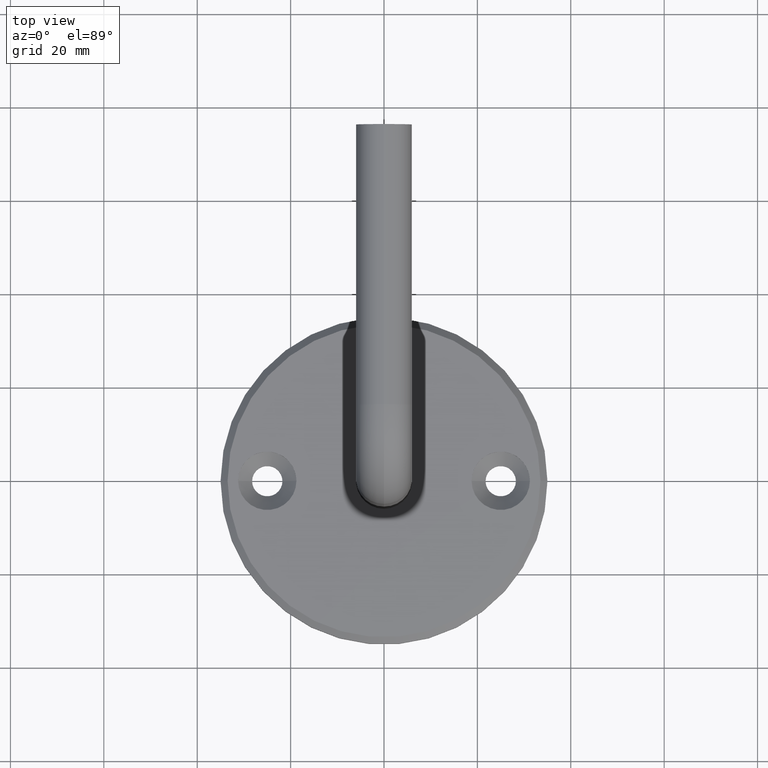
[diagram: clean part render]
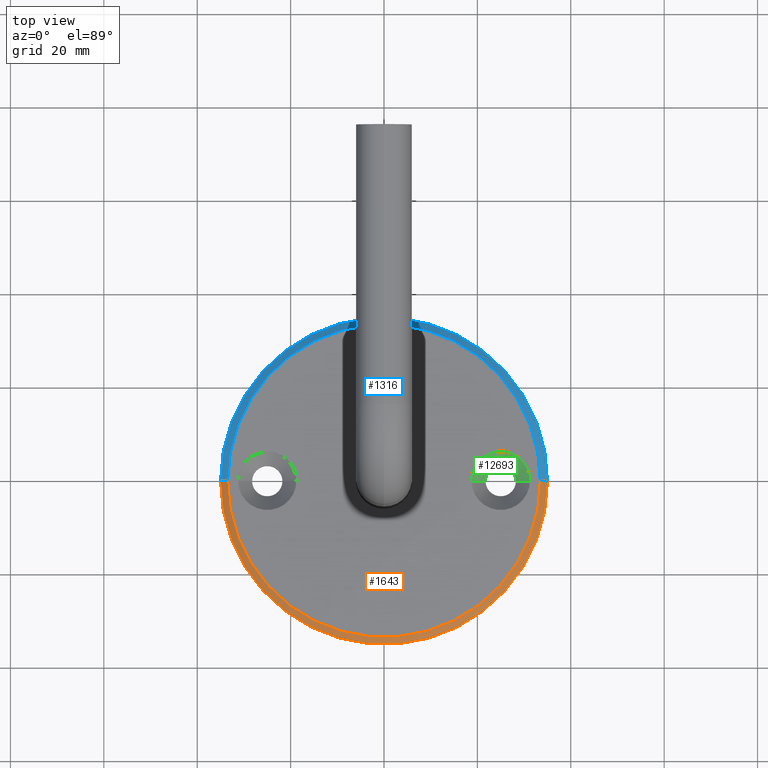
[diagram: same view with three faces highlighted in distinct colors, each labeled with its STEP entity id]
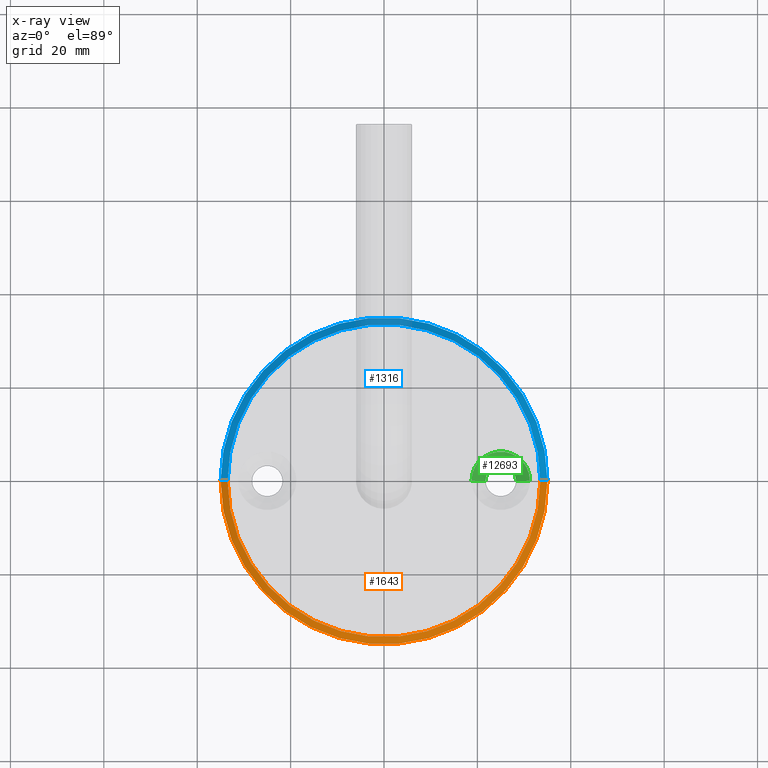
[diagram: x-ray of the same camera — body ghosted, the three highlighted faces saturated]
A machine part, top view with three faces highlighted in distinct colors.
The next image is the same camera in x-ray (body ghosted, the three faces saturated) — at least one of them is partly hidden behind the body in this view.
Their STEP definitions:

[orange] entity #1643 — the highlighted conical surface has half-angle 45 deg.
#294 = VERTEX_POINT ( 'NONE', #6119 ) ;
#363 = VERTEX_POINT ( 'NONE', #9739 ) ;
#713 = ORIENTED_EDGE ( 'NONE', *, *, #4297, .F. ) ;
#1643 = ADVANCED_FACE ( 'NONE', ( #7421 ), #13587, .T. ) ;
#1770 = AXIS2_PLACEMENT_3D ( 'NONE', #7084, #8257, #4668 ) ;
#2111 = DIRECTION ( 'NONE',  ( 0.000000000000000000, 0.000000000000000000, 1.000000000000000000 ) ) ;
#2679 = CARTESIAN_POINT ( 'NONE',  ( -33.50000000000002842, 0.000000000000000000, 6.000000000000000000 ) ) ;
#3317 = ORIENTED_EDGE ( 'NONE', *, *, #13312, .F. ) ;
#3758 = VERTEX_POINT ( 'NONE', #12869 ) ;
#3790 = AXIS2_PLACEMENT_3D ( 'NONE', #9637, #2111, #5918 ) ;
#4297 = EDGE_CURVE ( 'NONE', #3758, #294, #12770, .T. ) ;
#4668 = DIRECTION ( 'NONE',  ( -1.000000000000000000, 0.000000000000000000, 0.000000000000000000 ) ) ;
#5293 = DIRECTION ( 'NONE',  ( 0.7071067811865474617, 8.659560562354932858E-17, -0.7071067811865474617 ) ) ;
#5832 = DIRECTION ( 'NONE',  ( 0.000000000000000000, 0.000000000000000000, -1.000000000000000000 ) ) ;
#5918 = DIRECTION ( 'NONE',  ( 1.000000000000000000, 0.000000000000000000, 0.000000000000000000 ) ) ;
#6023 = VECTOR ( 'NONE', #7681, 1000.000000000000114 ) ;
#6119 = CARTESIAN_POINT ( 'NONE',  ( 35.00000000000000711, 4.286263797015737285E-15, 4.500000000000019540 ) ) ;
#6600 = CARTESIAN_POINT ( 'NONE',  ( 33.50000000000002842, 4.102566777143636929E-15, 6.000000000000000000 ) ) ;
#7084 = CARTESIAN_POINT ( 'NONE',  ( 0.000000000000000000, 0.000000000000000000, 6.000000000000000000 ) ) ;
#7421 = FACE_OUTER_BOUND ( 'NONE', #15457, .T. ) ;
#7681 = DIRECTION ( 'NONE',  ( -0.7071067811865474617, 0.000000000000000000, -0.7071067811865474617 ) ) ;
#8257 = DIRECTION ( 'NONE',  ( 0.000000000000000000, 0.000000000000000000, -1.000000000000000000 ) ) ;
#8740 = VERTEX_POINT ( 'NONE', #12690 ) ;
#8938 = CIRCLE ( 'NONE', #3790, 33.50000000000002842 ) ;
#9494 = VECTOR ( 'NONE', #5293, 1000.000000000000114 ) ;
#9637 = CARTESIAN_POINT ( 'NONE',  ( 0.000000000000000000, 0.000000000000000000, 6.000000000000000000 ) ) ;
#9739 = CARTESIAN_POINT ( 'NONE',  ( -35.00000000000000711, 0.000000000000000000, 4.500000000000019540 ) ) ;
#10165 = EDGE_CURVE ( 'NONE', #8740, #363, #15507, .T. ) ;
#10699 = DIRECTION ( 'NONE',  ( 1.000000000000000000, 0.000000000000000000, 0.000000000000000000 ) ) ;
#11695 = ORIENTED_EDGE ( 'NONE', *, *, #10165, .T. ) ;
#11773 = ORIENTED_EDGE ( 'NONE', *, *, #14166, .F. ) ;
#12690 = CARTESIAN_POINT ( 'NONE',  ( -33.50000000000002842, 0.000000000000000000, 6.000000000000000000 ) ) ;
#12770 = LINE ( 'NONE', #6600, #9494 ) ;
#12869 = CARTESIAN_POINT ( 'NONE',  ( 33.50000000000002842, 4.194415287079687502E-15, 6.000000000000000000 ) ) ;
#13156 = CARTESIAN_POINT ( 'NONE',  ( 0.000000000000000000, 0.000000000000000000, 4.500000000000019540 ) ) ;
#13172 = CIRCLE ( 'NONE', #14835, 35.00000000000000711 ) ;
#13312 = EDGE_CURVE ( 'NONE', #8740, #3758, #8938, .T. ) ;
#13587 = CONICAL_SURFACE ( 'NONE', #1770, 33.50000000000002842, 0.7853981633974482790 ) ;
#14166 = EDGE_CURVE ( 'NONE', #294, #363, #13172, .T. ) ;
#14835 = AXIS2_PLACEMENT_3D ( 'NONE', #13156, #5832, #10699 ) ;
#15457 = EDGE_LOOP ( 'NONE', ( #713, #3317, #11695, #11773 ) ) ;
#15507 = LINE ( 'NONE', #2679, #6023 ) ;

[blue] entity #1316 — the highlighted conical surface has half-angle 45 deg.
#294 = VERTEX_POINT ( 'NONE', #6119 ) ;
#363 = VERTEX_POINT ( 'NONE', #9739 ) ;
#433 = DIRECTION ( 'NONE',  ( 1.000000000000000000, 0.000000000000000000, 0.000000000000000000 ) ) ;
#1316 = ADVANCED_FACE ( 'NONE', ( #5333 ), #13992, .T. ) ;
#2679 = CARTESIAN_POINT ( 'NONE',  ( -33.50000000000002842, 0.000000000000000000, 6.000000000000000000 ) ) ;
#3288 = ORIENTED_EDGE ( 'NONE', *, *, #4297, .T. ) ;
#3758 = VERTEX_POINT ( 'NONE', #12869 ) ;
#3999 = AXIS2_PLACEMENT_3D ( 'NONE', #7888, #14207, #4802 ) ;
#4297 = EDGE_CURVE ( 'NONE', #3758, #294, #12770, .T. ) ;
#4334 = CIRCLE ( 'NONE', #3999, 35.00000000000000711 ) ;
#4802 = DIRECTION ( 'NONE',  ( 1.000000000000000000, 0.000000000000000000, 0.000000000000000000 ) ) ;
#5293 = DIRECTION ( 'NONE',  ( 0.7071067811865474617, 8.659560562354932858E-17, -0.7071067811865474617 ) ) ;
#5333 = FACE_OUTER_BOUND ( 'NONE', #14627, .T. ) ;
#5367 = ORIENTED_EDGE ( 'NONE', *, *, #15584, .F. ) ;
#6023 = VECTOR ( 'NONE', #7681, 1000.000000000000114 ) ;
#6119 = CARTESIAN_POINT ( 'NONE',  ( 35.00000000000000711, 4.286263797015737285E-15, 4.500000000000019540 ) ) ;
#6399 = CARTESIAN_POINT ( 'NONE',  ( 0.000000000000000000, 0.000000000000000000, 6.000000000000000000 ) ) ;
#6453 = CARTESIAN_POINT ( 'NONE',  ( 0.000000000000000000, 0.000000000000000000, 6.000000000000000000 ) ) ;
#6600 = CARTESIAN_POINT ( 'NONE',  ( 33.50000000000002842, 4.102566777143636929E-15, 6.000000000000000000 ) ) ;
#7466 = ORIENTED_EDGE ( 'NONE', *, *, #10165, .F. ) ;
#7619 = DIRECTION ( 'NONE',  ( -1.000000000000000000, 0.000000000000000000, 0.000000000000000000 ) ) ;
#7681 = DIRECTION ( 'NONE',  ( -0.7071067811865474617, 0.000000000000000000, -0.7071067811865474617 ) ) ;
#7888 = CARTESIAN_POINT ( 'NONE',  ( 0.000000000000000000, 0.000000000000000000, 4.500000000000019540 ) ) ;
#8339 = CIRCLE ( 'NONE', #8800, 33.50000000000002842 ) ;
#8740 = VERTEX_POINT ( 'NONE', #12690 ) ;
#8800 = AXIS2_PLACEMENT_3D ( 'NONE', #6399, #15027, #433 ) ;
#9494 = VECTOR ( 'NONE', #5293, 1000.000000000000114 ) ;
#9739 = CARTESIAN_POINT ( 'NONE',  ( -35.00000000000000711, 0.000000000000000000, 4.500000000000019540 ) ) ;
#9971 = ORIENTED_EDGE ( 'NONE', *, *, #10985, .F. ) ;
#10165 = EDGE_CURVE ( 'NONE', #8740, #363, #15507, .T. ) ;
#10985 = EDGE_CURVE ( 'NONE', #363, #294, #4334, .T. ) ;
#12690 = CARTESIAN_POINT ( 'NONE',  ( -33.50000000000002842, 0.000000000000000000, 6.000000000000000000 ) ) ;
#12700 = AXIS2_PLACEMENT_3D ( 'NONE', #6453, #15091, #7619 ) ;
#12770 = LINE ( 'NONE', #6600, #9494 ) ;
#12869 = CARTESIAN_POINT ( 'NONE',  ( 33.50000000000002842, 4.194415287079687502E-15, 6.000000000000000000 ) ) ;
#13992 = CONICAL_SURFACE ( 'NONE', #12700, 33.50000000000002842, 0.7853981633974482790 ) ;
#14207 = DIRECTION ( 'NONE',  ( 0.000000000000000000, 0.000000000000000000, -1.000000000000000000 ) ) ;
#14627 = EDGE_LOOP ( 'NONE', ( #5367, #3288, #9971, #7466 ) ) ;
#15027 = DIRECTION ( 'NONE',  ( 0.000000000000000000, 0.000000000000000000, 1.000000000000000000 ) ) ;
#15091 = DIRECTION ( 'NONE',  ( 0.000000000000000000, 0.000000000000000000, -1.000000000000000000 ) ) ;
#15507 = LINE ( 'NONE', #2679, #6023 ) ;
#15584 = EDGE_CURVE ( 'NONE', #3758, #8740, #8339, .T. ) ;

[green] entity #12693 — the highlighted conical surface has half-angle 45 deg.
#183 = CARTESIAN_POINT ( 'NONE',  ( 21.75000000000000000, 3.980102097228903655E-16, 1.799999999999997824 ) ) ;
#304 = ORIENTED_EDGE ( 'NONE', *, *, #5629, .T. ) ;
#419 = CARTESIAN_POINT ( 'NONE',  ( 28.25000000000000355, 0.000000000000000000, 1.799999999999997824 ) ) ;
#423 = LINE ( 'NONE', #2178, #8493 ) ;
#638 = CARTESIAN_POINT ( 'NONE',  ( 18.75000000000000355, 7.654042494670955634E-16, 4.800000000000000711 ) ) ;
#678 = AXIS2_PLACEMENT_3D ( 'NONE', #12857, #13879, #5477 ) ;
#1602 = VERTEX_POINT ( 'NONE', #12852 ) ;
#2178 = CARTESIAN_POINT ( 'NONE',  ( 31.25000000000000000, 0.000000000000000000, 4.800000000000000711 ) ) ;
#3129 = EDGE_CURVE ( 'NONE', #5769, #9219, #8545, .T. ) ;
#4322 = FACE_OUTER_BOUND ( 'NONE', #7462, .T. ) ;
#4430 = AXIS2_PLACEMENT_3D ( 'NONE', #5961, #10836, #15792 ) ;
#5126 = EDGE_CURVE ( 'NONE', #14078, #5769, #11808, .T. ) ;
#5477 = DIRECTION ( 'NONE',  ( 1.000000000000000000, 0.000000000000000000, 0.000000000000000000 ) ) ;
#5629 = EDGE_CURVE ( 'NONE', #14078, #1602, #423, .T. ) ;
#5769 = VERTEX_POINT ( 'NONE', #183 ) ;
#5961 = CARTESIAN_POINT ( 'NONE',  ( 25.00000000000000000, 0.000000000000000000, 4.800000000000000711 ) ) ;
#7462 = EDGE_LOOP ( 'NONE', ( #12405, #10774, #304, #11299 ) ) ;
#8493 = VECTOR ( 'NONE', #10963, 1000.000000000000000 ) ;
#8545 = LINE ( 'NONE', #638, #8749 ) ;
#8749 = VECTOR ( 'NONE', #10857, 1000.000000000000000 ) ;
#9219 = VERTEX_POINT ( 'NONE', #10163 ) ;
#10163 = CARTESIAN_POINT ( 'NONE',  ( 18.75000000000000355, 7.654042494670955634E-16, 4.800000000000000711 ) ) ;
#10774 = ORIENTED_EDGE ( 'NONE', *, *, #5126, .F. ) ;
#10836 = DIRECTION ( 'NONE',  ( -0.000000000000000000, -0.000000000000000000, 1.000000000000000000 ) ) ;
#10857 = DIRECTION ( 'NONE',  ( -0.7071067811865466846, 8.659560562354922997E-17, 0.7071067811865483499 ) ) ;
#10963 = DIRECTION ( 'NONE',  ( 0.7071067811865466846, 0.000000000000000000, 0.7071067811865483499 ) ) ;
#11299 = ORIENTED_EDGE ( 'NONE', *, *, #13228, .T. ) ;
#11808 = CIRCLE ( 'NONE', #678, 3.250000000000002665 ) ;
#11917 = DIRECTION ( 'NONE',  ( -0.000000000000000000, -0.000000000000000000, 1.000000000000000000 ) ) ;
#12405 = ORIENTED_EDGE ( 'NONE', *, *, #3129, .F. ) ;
#12693 = ADVANCED_FACE ( 'NONE', ( #4322 ), #15720, .F. ) ;
#12852 = CARTESIAN_POINT ( 'NONE',  ( 31.25000000000000000, 0.000000000000000000, 4.800000000000000711 ) ) ;
#12857 = CARTESIAN_POINT ( 'NONE',  ( 25.00000000000000000, 0.000000000000000000, 1.799999999999997824 ) ) ;
#13139 = DIRECTION ( 'NONE',  ( 1.000000000000000000, 0.000000000000000000, 0.000000000000000000 ) ) ;
#13228 = EDGE_CURVE ( 'NONE', #1602, #9219, #14340, .T. ) ;
#13475 = AXIS2_PLACEMENT_3D ( 'NONE', #15798, #11917, #13139 ) ;
#13879 = DIRECTION ( 'NONE',  ( -0.000000000000000000, -0.000000000000000000, 1.000000000000000000 ) ) ;
#14078 = VERTEX_POINT ( 'NONE', #419 ) ;
#14340 = CIRCLE ( 'NONE', #13475, 6.249999999999998224 ) ;
#15720 = CONICAL_SURFACE ( 'NONE', #4430, 6.249999999999998224, 0.7853981633974471688 ) ;
#15792 = DIRECTION ( 'NONE',  ( 1.000000000000000000, 0.000000000000000000, 0.000000000000000000 ) ) ;
#15798 = CARTESIAN_POINT ( 'NONE',  ( 25.00000000000000000, 0.000000000000000000, 4.800000000000000711 ) ) ;